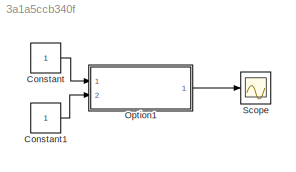
MODEL slx_3a1a5ccb340f
KIND model
CONFIG AbsTol = auto
CONFIG EnableMultiTasking = off
CONFIG FixedStep = auto
CONFIG MaxStep = auto
CONFIG MinStep = auto
CONFIG RelTol = 1e-3
CONFIG SampleTimeConstraint = Unconstrained
CONFIG Solver = VariableStepAuto
CONFIG SolverName = VariableStepAuto
CONFIG StartTime = 0.0
CONFIG StopTime = 10.0
BLOCK [Constant] Constant
BLOCK [Constant] Constant1
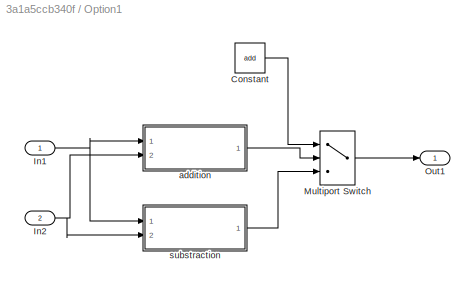
BLOCK [SubSystem] Option1
  Ports = [2, 1]
  RequestExecContextInheritance = off
  Variant = off
BLOCK [Constant] Option1/Constant
  Value = add
BLOCK [Inport] Option1/In1
  IconDisplay = Port number
BLOCK [Inport] Option1/In2
  IconDisplay = Port number
  Port = 2
BLOCK [MultiPortSwitch] Option1/Multiport Switch
  InputSameDT = off
  Inputs = 2
  Ports = [3, 1]
  SaturateOnIntegerOverflow = off
BLOCK [Outport] Option1/Out1
  IconDisplay = Port number
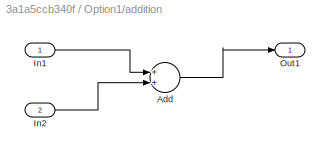
BLOCK [SubSystem] Option1/addition
  Ports = [2, 1]
  RequestExecContextInheritance = off
  Variant = off
BLOCK [Sum] Option1/addition/Add
  InputSameDT = off
  OutDataTypeStr = Inherit: Inherit via internal rule
  Ports = [2, 1]
  SaturateOnIntegerOverflow = off
BLOCK [Inport] Option1/addition/In1
  IconDisplay = Port number
BLOCK [Inport] Option1/addition/In2
  IconDisplay = Port number
  Port = 2
BLOCK [Outport] Option1/addition/Out1
  IconDisplay = Port number
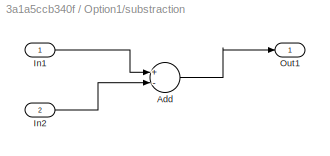
BLOCK [SubSystem] Option1/substraction
  Ports = [2, 1]
  RequestExecContextInheritance = off
  Variant = off
BLOCK [Sum] Option1/substraction/Add
  InputSameDT = off
  Inputs = +-
  OutDataTypeStr = Inherit: Inherit via internal rule
  Ports = [2, 1]
  SaturateOnIntegerOverflow = off
BLOCK [Inport] Option1/substraction/In1
  IconDisplay = Port number
BLOCK [Inport] Option1/substraction/In2
  IconDisplay = Port number
  Port = 2
BLOCK [Outport] Option1/substraction/Out1
  IconDisplay = Port number
BLOCK [Scope] Scope
  NumInputPorts = 1
  Ports = [1]
  ScopeSpecificationString = Simulink.scopes.TimeScopeBlockCfg('CurrentConfiguration', extmgr.ConfigurationSet(extmgr.Configuration('Core','General UI',true),extmgr.Configuration('Core','Source UI',true),extmgr.Configuration('Sources','WiredSimulink',true),extmgr.Configuration('Visuals','Time Domain',true,'SerializedDisplays',{struct('MinYLimReal','-1.00000','MaxYLimReal','1.00000','YLabelReal','','MinYLimMag','0.00000','MaxY...<+1346ch>
LINE Constant1:1 -> Option1:2
LINE Constant:1 -> Option1:1
LINE Option1/Constant:1 -> Option1/Multiport Switch:1
NET Option1/In1:1 -> Option1/addition:1, Option1/substraction:1
NET Option1/In2:1 -> Option1/addition:2, Option1/substraction:2
LINE Option1/Multiport Switch:1 -> Option1/Out1:1
LINE Option1/addition/Add:1 -> Option1/addition/Out1:1
LINE Option1/addition/In1:1 -> Option1/addition/Add:1
LINE Option1/addition/In2:1 -> Option1/addition/Add:2
LINE Option1/addition:1 -> Option1/Multiport Switch:2
LINE Option1/substraction/Add:1 -> Option1/substraction/Out1:1
LINE Option1/substraction/In1:1 -> Option1/substraction/Add:1
LINE Option1/substraction/In2:1 -> Option1/substraction/Add:2
LINE Option1/substraction:1 -> Option1/Multiport Switch:3
LINE Option1:1 -> Scope:1
note: NET lines group one-source signal fan-out (src -> all destinations, sorted); 1:1 wires keep LINE
